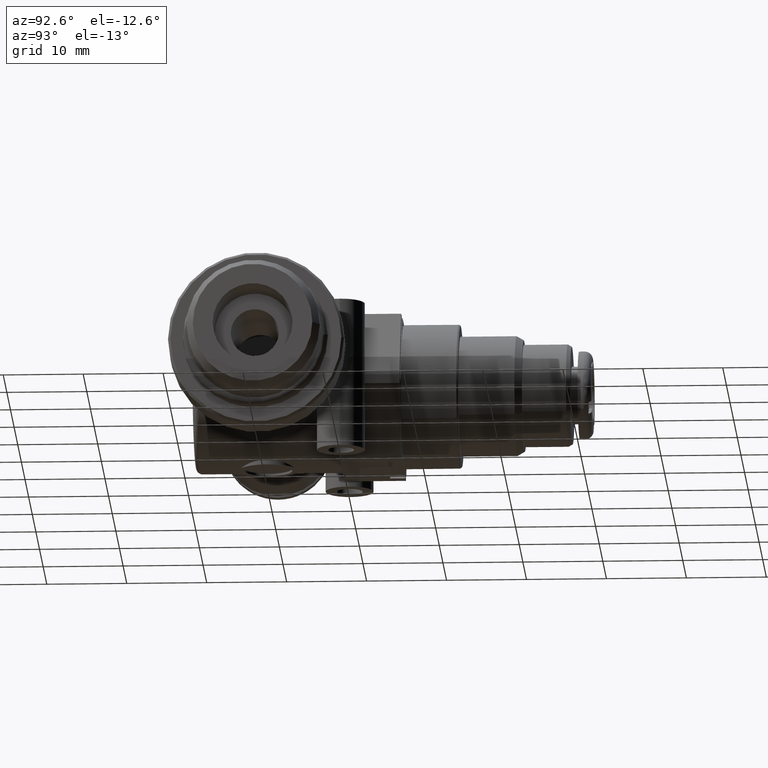
[diagram: clean part render]
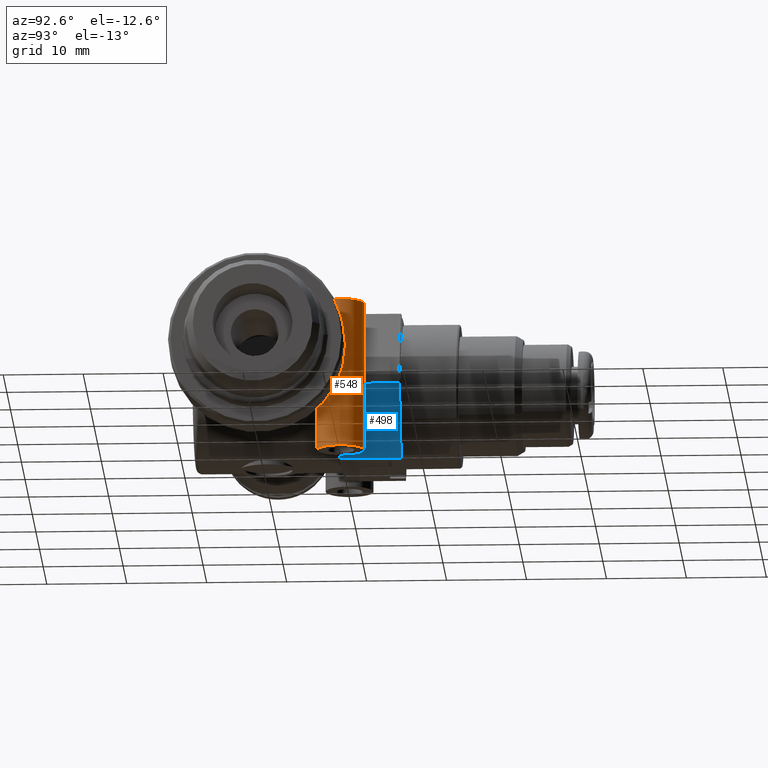
[diagram: same view with the hole feature highlighted: cylindrical wall and planar end face, labeled with their STEP entity ids]
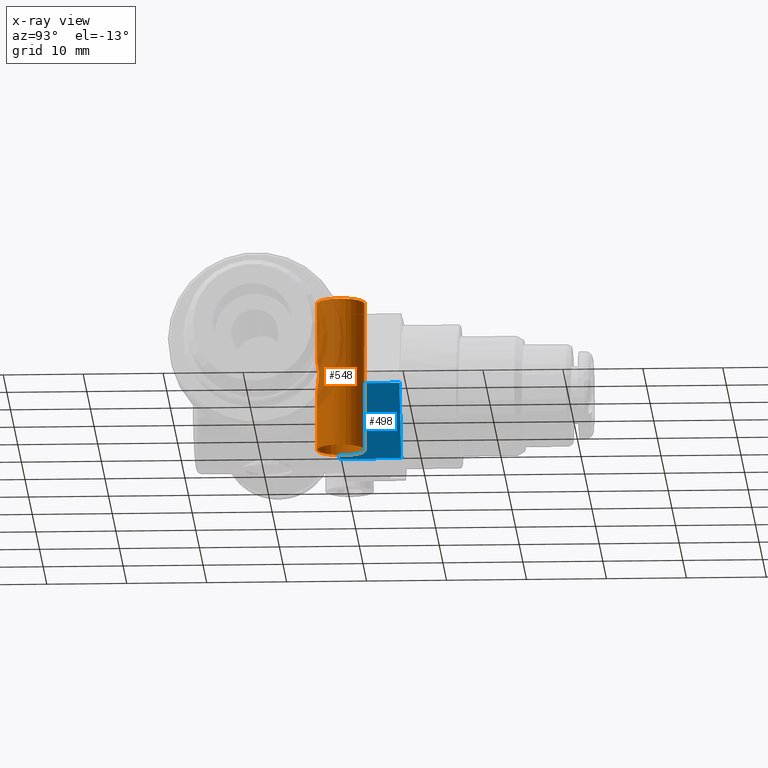
[diagram: x-ray of the same camera — body ghosted, the hole faces saturated]
A machine part, auxiliary view. The highlighted faces form one hole feature of diameter 6 mm: the cylindrical wall (entity #548, orange) and its adjacent planar end face (entity #498, blue) — they share a circular edge in the B-rep.
The next image is the same camera in x-ray (body ghosted, the hole faces saturated) — the bore reads through the body.
Wall:
#548 = ADVANCED_FACE( '', ( #1156, #1157, #1158, #1159 ), #1160, .T. );
#1156 = FACE_OUTER_BOUND( '', #1841, .T. );
#1157 = FACE_OUTER_BOUND( '', #1842, .T. );
#1158 = FACE_BOUND( '', #1843, .T. );
#1159 = FACE_BOUND( '', #1844, .T. );
#1160 = CYLINDRICAL_SURFACE( '', #1845, 3.00000000000000 );
#1841 = EDGE_LOOP( '', ( #3035 ) );
#1842 = EDGE_LOOP( '', ( #3036 ) );
#1843 = EDGE_LOOP( '', ( #3037 ) );
#1844 = EDGE_LOOP( '', ( #3038, #3039, #3040, #3041, #3042, #3043 ) );
#1845 = AXIS2_PLACEMENT_3D( '', #3044, #3045, #3046 );
#3035 = ORIENTED_EDGE( '', *, *, #4087, .F. );
#3036 = ORIENTED_EDGE( '', *, *, #3893, .T. );
#3037 = ORIENTED_EDGE( '', *, *, #3693, .T. );
#3038 = ORIENTED_EDGE( '', *, *, #3833, .T. );
#3039 = ORIENTED_EDGE( '', *, *, #4088, .T. );
#3040 = ORIENTED_EDGE( '', *, *, #4060, .T. );
#3041 = ORIENTED_EDGE( '', *, *, #4020, .T. );
#3042 = ORIENTED_EDGE( '', *, *, #4089, .T. );
#3043 = ORIENTED_EDGE( '', *, *, #3939, .T. );
#3044 = CARTESIAN_POINT( '', ( 12.0000000000000, 9.60000000000000, 9.35000000000000 ) );
#3045 = DIRECTION( '', ( 0.000000000000000, -0.000000000000000, 1.00000000000000 ) );
#3046 = DIRECTION( '', ( -1.00000000000000, 0.000000000000000, 0.000000000000000 ) );
#3693 = EDGE_CURVE( '', #4309, #4309, #4310, .T. );
#3833 = EDGE_CURVE( '', #4546, #4547, #4548, .T. );
#3893 = EDGE_CURVE( '', #4637, #4637, #4638, .T. );
#3939 = EDGE_CURVE( '', #4707, #4546, #4708, .F. );
#4020 = EDGE_CURVE( '', #4829, #4830, #4831, .F. );
#4060 = EDGE_CURVE( '', #4887, #4829, #4888, .T. );
#4087 = EDGE_CURVE( '', #4920, #4920, #4921, .T. );
#4088 = EDGE_CURVE( '', #4547, #4887, #4922, .T. );
#4089 = EDGE_CURVE( '', #4830, #4707, #4923, .T. );
#4309 = VERTEX_POINT( '', #5200 );
#4310 = B_SPLINE_CURVE_WITH_KNOTS( '', 3, ( #5201, #5202, #5203, #5204, #5205, #5206, #5207, #5208, #5209, #5210, #5211, #5212, #5213, #5214, #5215, #5216, #5217, #5218, #5219, #5220, #5221, #5222, #5223, #5224, #5225, #5226, #5227, #5228, #5229, #5230, #5231, #5232, #5233, #5234, #5235, #5236, #5237, #5238, #5239, #5240, #5241, #5242, #5243, #5244 ), .UNSPECIFIED., .T., .F., ( 2, 2, 2, 2, 2, 2, 2, 2, 2, 2, 2, 2, 2, 2, 2, 2, 2, 2, 2, 2, 2, 2, 2, 2 ), ( -0.000663314908686696, 0.000000000000000, 0.000663314908686694, 0.00132662981737339, 0.00198994472606008, 0.00232160218040343, 0.00265325963474678, 0.00298491708909013, 0.00331657454343348, 0.00397988945212018, 0.00464320436080687, 0.00530651926949357, 0.00596983417818027, 0.00663314908686696, 0.00729646399555366, 0.00762812144989701, 0.00795977890424036, 0.00829143635858370, 0.00862309381292705, 0.00895475126727040, 0.00928640872161375, 0.00994972363030044, 0.0106130385389871, 0.0112763534476738 ), .UNSPECIFIED. );
#4546 = VERTEX_POINT( '', #5719 );
#4547 = VERTEX_POINT( '', #5720 );
#4548 = LINE( '', #5721, #5722 );
#4637 = VERTEX_POINT( '', #5853 );
#4638 = CIRCLE( '', #5854, 3.00000000000000 );
#4707 = VERTEX_POINT( '', #5971 );
#4708 = ELLIPSE( '', #5972, 6.00000000000000, 3.00000000000000 );
#4829 = VERTEX_POINT( '', #6404 );
#4830 = VERTEX_POINT( '', #6405 );
#4831 = ELLIPSE( '', #6406, 6.00000000000000, 3.00000000000000 );
#4887 = VERTEX_POINT( '', #6481 );
#4888 = LINE( '', #6482, #6483 );
#4920 = VERTEX_POINT( '', #6519 );
#4921 = CIRCLE( '', #6520, 3.00000000000000 );
#4922 = B_SPLINE_CURVE_WITH_KNOTS( '', 3, ( #6521, #6522, #6523, #6524, #6525, #6526, #6527, #6528, #6529, #6530, #6531, #6532, #6533, #6534, #6535, #6536, #6537, #6538, #6539, #6540, #6541, #6542, #6543, #6544 ), .UNSPECIFIED., .F., .F., ( 4, 2, 2, 2, 2, 2, 2, 2, 2, 2, 2, 4 ), ( 0.000411369188282286, 0.000786886969048581, 0.00116240474981488, 0.00153792253058117, 0.00191344031134747, 0.00266447587288006, 0.00341551143441264, 0.00416654699594523, 0.00491758255747782, 0.00566861811901041, 0.00604413589977670, 0.00641965368054299 ), .UNSPECIFIED. );
#4923 = B_SPLINE_CURVE_WITH_KNOTS( '', 3, ( #6545, #6546, #6547, #6548 ), .UNSPECIFIED., .F., .F., ( 4, 4 ), ( 6.50521303491303E-019, 0.00141144808240627 ), .UNSPECIFIED. );
#5200 = CARTESIAN_POINT( '', ( 10.6923303169378, 6.90000000000000, 0.000000000000000 ) );
#5201 = CARTESIAN_POINT( '', ( 10.6923303169378, 6.90000000000000, -0.223372458043953 ) );
#5202 = CARTESIAN_POINT( '', ( 10.6923303169378, 6.90000000000000, 0.223372458043953 ) );
#5203 = CARTESIAN_POINT( '', ( 10.7139512423636, 6.88917016355307, 0.443274782966415 ) );
#5204 = CARTESIAN_POINT( '', ( 10.8053640652712, 6.84766194070503, 0.875604945979324 ) );
#5205 = CARTESIAN_POINT( '', ( 10.8753629535739, 6.81670981671288, 1.08691406947181 ) );
#5206 = CARTESIAN_POINT( '', ( 11.0770753660436, 6.74347713984063, 1.47459519330981 ) );
#5207 = CARTESIAN_POINT( '', ( 11.2105667029262, 6.70023306052220, 1.65431009805005 ) );
#5208 = CARTESIAN_POINT( '', ( 11.4725978894323, 6.64537475773597, 1.85848340608793 ) );
#5209 = CARTESIAN_POINT( '', ( 11.5676859332318, 6.62943124992445, 1.91371398316989 ) );
#5210 = CARTESIAN_POINT( '', ( 11.7778401497762, 6.60637023795532, 1.99186650805541 ) );
#5211 = CARTESIAN_POINT( '', ( 11.8864643491262, 6.60004875053598, 2.01230129905222 ) );
#5212 = CARTESIAN_POINT( '', ( 12.1109445560994, 6.59995180894506, 2.01261922559176 ) );
#5213 = CARTESIAN_POINT( '', ( 12.2213779373212, 6.60631051746791, 1.99206300190535 ) );
#5214 = CARTESIAN_POINT( '', ( 12.4316389207332, 6.62933126197752, 1.91405869182083 ) );
#5215 = CARTESIAN_POINT( '', ( 12.5278741754911, 6.64546274819553, 1.85816701958692 ) );
#5216 = CARTESIAN_POINT( '', ( 12.7895400644762, 6.70027715869431, 1.65412370698782 ) );
#5217 = CARTESIAN_POINT( '', ( 12.9228629822962, 6.74345822909121, 1.47466947075658 ) );
#5218 = CARTESIAN_POINT( '', ( 13.1245271766240, 6.81666645870936, 1.08716941006738 ) );
#5219 = CARTESIAN_POINT( '', ( 13.1947958122588, 6.84773407728518, 0.874889253120810 ) );
#5220 = CARTESIAN_POINT( '', ( 13.2859345838451, 6.88911878010131, 0.443774303102876 ) );
#5221 = CARTESIAN_POINT( '', ( 13.3075610836491, 6.89994740292317, 0.224449333281119 ) );
#5222 = CARTESIAN_POINT( '', ( 13.3077774944374, 6.90005221541269, -0.221203731647836 ) );
#5223 = CARTESIAN_POINT( '', ( 13.2861296884393, 6.88921818097250, -0.441895178940651 ) );
#5224 = CARTESIAN_POINT( '', ( 13.1956764300181, 6.84812327300912, -0.871668590625960 ) );
#5225 = CARTESIAN_POINT( '', ( 13.1255604070059, 6.81708742352270, -1.08459848474594 ) );
#5226 = CARTESIAN_POINT( '', ( 12.9240862248988, 6.74385692111073, -1.47289804149897 ) );
#5227 = CARTESIAN_POINT( '', ( 12.7907975025568, 6.70065738615423, -1.65258797155132 ) );
#5228 = CARTESIAN_POINT( '', ( 12.5300651710270, 6.64586425750404, -1.85673163742504 ) );
#5229 = CARTESIAN_POINT( '', ( 12.4338046558688, 6.62967983387610, -1.91285203674129 ) );
#5230 = CARTESIAN_POINT( '', ( 12.2254230785342, 6.60664522577093, -1.99095365967340 ) );
#5231 = CARTESIAN_POINT( '', ( 12.1147350630086, 6.60011989315509, -2.01206798101947 ) );
#5232 = CARTESIAN_POINT( '', ( 11.8916227491032, 6.59988347532709, -2.01284333130271 ) );
#5233 = CARTESIAN_POINT( '', ( 11.7800355546668, 6.60621940774216, -1.99235747638848 ) );
#5234 = CARTESIAN_POINT( '', ( 11.5704983727618, 6.62903467809028, -1.91507765211409 ) );
#5235 = CARTESIAN_POINT( '', ( 11.4739866875253, 6.64511693112195, -1.85940942255562 ) );
#5236 = CARTESIAN_POINT( '', ( 11.2986221775463, 6.68176541282014, -1.72307672406444 ) );
#5237 = CARTESIAN_POINT( '', ( 11.2223082529420, 6.70169241225708, -1.64471454590283 ) );
#5238 = CARTESIAN_POINT( '', ( 11.0867370664864, 6.74151401247438, -1.47300914648214 ) );
#5239 = CARTESIAN_POINT( '', ( 11.0273684885588, 6.76153552003812, -1.37890772815553 ) );
#5240 = CARTESIAN_POINT( '', ( 10.8756926157169, 6.81656623037998, -1.08785167778526 ) );
#5241 = CARTESIAN_POINT( '', ( 10.8056785633163, 6.84752264253858, -0.876784473247790 ) );
#5242 = CARTESIAN_POINT( '', ( 10.7139825959845, 6.88915243253530, -0.443729775764339 ) );
#5243 = CARTESIAN_POINT( '', ( 10.6923303169378, 6.90000000000000, -0.223372458043953 ) );
#5244 = CARTESIAN_POINT( '', ( 10.6923303169378, 6.90000000000000, 0.223372458043953 ) );
#5719 = CARTESIAN_POINT( '', ( 9.02678625053630, 9.20000000000000, 4.86514758500697 ) );
#5720 = CARTESIAN_POINT( '', ( 9.02678625053630, 9.20000000000000, 2.62242826157911 ) );
#5721 = CARTESIAN_POINT( '', ( 9.02678625053630, 9.20000000000000, 9.35000000000000 ) );
#5722 = VECTOR( '', #7060, 1000.00000000000 );
#5853 = CARTESIAN_POINT( '', ( 15.0000000000000, 9.60000000000000, -9.35000000000000 ) );
#5854 = AXIS2_PLACEMENT_3D( '', #7133, #7134, #7135 );
#5971 = CARTESIAN_POINT( '', ( 11.4282305532251, 12.5450092868673, 0.705724041203134 ) );
#5972 = AXIS2_PLACEMENT_3D( '', #7188, #7189, #7190 );
#6404 = CARTESIAN_POINT( '', ( 9.02678625053630, 9.20000000000000, -4.86514758500697 ) );
#6405 = CARTESIAN_POINT( '', ( 11.4282305532251, 12.5450092868673, -0.705724041203131 ) );
#6406 = AXIS2_PLACEMENT_3D( '', #7284, #7285, #7286 );
#6481 = CARTESIAN_POINT( '', ( 9.02678625053630, 9.20000000000000, -2.62242826157911 ) );
#6482 = CARTESIAN_POINT( '', ( 9.02678625053630, 9.20000000000000, 9.35000000000000 ) );
#6483 = VECTOR( '', #7330, 1000.00000000000 );
#6519 = CARTESIAN_POINT( '', ( 15.0000000000000, 9.60000000000000, 9.35000000000000 ) );
#6520 = AXIS2_PLACEMENT_3D( '', #7362, #7363, #7364 );
#6521 = CARTESIAN_POINT( '', ( 9.02678625053630, 9.20000000000000, 2.62242826157911 ) );
#6522 = CARTESIAN_POINT( '', ( 9.04212068651192, 9.08601861029255, 2.56964486313408 ) );
#6523 = CARTESIAN_POINT( '', ( 9.06266099999865, 8.98281102078345, 2.49713789076783 ) );
#6524 = CARTESIAN_POINT( '', ( 9.10719422978917, 8.79965169280477, 2.32949249994492 ) );
#6525 = CARTESIAN_POINT( '', ( 9.13092175128524, 8.72024480121961, 2.23542796235512 ) );
#6526 = CARTESIAN_POINT( '', ( 9.17825790095592, 8.57855458613218, 2.03235137378192 ) );
#6527 = CARTESIAN_POINT( '', ( 9.20168886943548, 8.51705381947301, 1.92398430343214 ) );
#6528 = CARTESIAN_POINT( '', ( 9.24532004790857, 8.41043874688824, 1.70201376653832 ) );
#6529 = CARTESIAN_POINT( '', ( 9.26573599038205, 8.36480234827592, 1.58753178806570 ) );
#6530 = CARTESIAN_POINT( '', ( 9.32149127915953, 8.24602707381262, 1.23542819252035 ) );
#6531 = CARTESIAN_POINT( '', ( 9.35099182384231, 8.19131378956690, 0.989762189760738 ) );
#6532 = CARTESIAN_POINT( '', ( 9.38999584867337, 8.12029750055208, 0.498653430493098 ) );
#6533 = CARTESIAN_POINT( '', ( 9.39999937757450, 8.10333812656680, 0.250544410001699 ) );
#6534 = CARTESIAN_POINT( '', ( 9.40000062236748, 8.10333596411483, -0.250497703133467 ) );
#6535 = CARTESIAN_POINT( '', ( 9.38981580708663, 8.12061352167103, -0.501761491298760 ) );
#6536 = CARTESIAN_POINT( '', ( 9.35076577767721, 8.19173727292411, -0.991758466656487 ) );
#6537 = CARTESIAN_POINT( '', ( 9.32188718125675, 8.24524601923618, -1.23252764827925 ) );
#6538 = CARTESIAN_POINT( '', ( 9.24752355055476, 8.40353854489096, -1.70294251394073 ) );
#6539 = CARTESIAN_POINT( '', ( 9.20188646120618, 8.50772898936413, -1.93106819338534 ) );
#6540 = CARTESIAN_POINT( '', ( 9.13064344687647, 8.72112753757185, -2.23657884929724 ) );
#6541 = CARTESIAN_POINT( '', ( 9.10696907427233, 8.80055988691752, -2.33034453369805 ) );
#6542 = CARTESIAN_POINT( '', ( 9.06282217568560, 8.98216599318444, -2.49652670271925 ) );
#6543 = CARTESIAN_POINT( '', ( 9.04206341653163, 9.08644430002465, -2.56984199488340 ) );
#6544 = CARTESIAN_POINT( '', ( 9.02678625053630, 9.20000000000000, -2.62242826157911 ) );
#6545 = CARTESIAN_POINT( '', ( 11.4282305532251, 12.5450092868673, -0.705724041203132 ) );
#6546 = CARTESIAN_POINT( '', ( 11.4572841277636, 12.5506499978541, -0.235241347067710 ) );
#6547 = CARTESIAN_POINT( '', ( 11.4572841277636, 12.5506499978541, 0.235241347067713 ) );
#6548 = CARTESIAN_POINT( '', ( 11.4282305532251, 12.5450092868673, 0.705724041203135 ) );
#7060 = DIRECTION( '', ( -0.000000000000000, -0.000000000000000, -1.00000000000000 ) );
#7133 = CARTESIAN_POINT( '', ( 12.0000000000000, 9.60000000000000, -9.35000000000000 ) );
#7134 = DIRECTION( '', ( 0.000000000000000, 0.000000000000000, 1.00000000000000 ) );
#7135 = DIRECTION( '', ( 1.00000000000000, 0.000000000000000, 0.000000000000000 ) );
#7188 = CARTESIAN_POINT( '', ( 12.0000000000000, 9.60000000000000, -0.284609690826526 ) );
#7189 = DIRECTION( '', ( -0.866025403784439, 0.000000000000000, -0.500000000000000 ) );
#7190 = DIRECTION( '', ( 0.500000000000000, -0.000000000000000, -0.866025403784438 ) );
#7284 = CARTESIAN_POINT( '', ( 12.0000000000000, 9.60000000000000, 0.284609690826528 ) );
#7285 = DIRECTION( '', ( -0.866025403784439, 0.000000000000000, 0.500000000000000 ) );
#7286 = DIRECTION( '', ( -0.500000000000000, 0.000000000000000, -0.866025403784439 ) );
#7330 = DIRECTION( '', ( -0.000000000000000, -0.000000000000000, -1.00000000000000 ) );
#7362 = CARTESIAN_POINT( '', ( 12.0000000000000, 9.60000000000000, 9.35000000000000 ) );
#7363 = DIRECTION( '', ( 0.000000000000000, 0.000000000000000, 1.00000000000000 ) );
#7364 = DIRECTION( '', ( 1.00000000000000, 0.000000000000000, 0.000000000000000 ) );
End face:
#498 = ADVANCED_FACE( '', ( #1067 ), #1068, .F. );
#1067 = FACE_OUTER_BOUND( '', #1752, .T. );
#1068 = PLANE( '', #1753 );
#1752 = EDGE_LOOP( '', ( #2838, #2839, #2840, #2841, #2842 ) );
#1753 = AXIS2_PLACEMENT_3D( '', #2843, #2844, #2845 );
#2838 = ORIENTED_EDGE( '', *, *, #4020, .F. );
#2839 = ORIENTED_EDGE( '', *, *, #4021, .T. );
#2840 = ORIENTED_EDGE( '', *, *, #4007, .F. );
#2841 = ORIENTED_EDGE( '', *, *, #3721, .F. );
#2842 = ORIENTED_EDGE( '', *, *, #4022, .T. );
#2843 = CARTESIAN_POINT( '', ( 11.4282305532251, 16.9000000000000, -0.705724041203130 ) );
#2844 = DIRECTION( '', ( -0.866025403784439, 0.000000000000000, 0.500000000000000 ) );
#2845 = DIRECTION( '', ( 0.500000000000000, 0.000000000000000, 0.866025403784439 ) );
#3721 = EDGE_CURVE( '', #4357, #4359, #4360, .T. );
#4007 = EDGE_CURVE( '', #4359, #4809, #4810, .T. );
#4020 = EDGE_CURVE( '', #4829, #4830, #4831, .F. );
#4021 = EDGE_CURVE( '', #4829, #4809, #4832, .T. );
#4022 = EDGE_CURVE( '', #4357, #4830, #4833, .T. );
#4357 = VERTEX_POINT( '', #5393 );
#4359 = VERTEX_POINT( '', #5395 );
#4360 = LINE( '', #5396, #5397 );
#4809 = VERTEX_POINT( '', #6336 );
#4810 = LINE( '', #6337, #6338 );
#4829 = VERTEX_POINT( '', #6404 );
#4830 = VERTEX_POINT( '', #6405 );
#4831 = ELLIPSE( '', #6406, 6.00000000000000, 3.00000000000000 );
#4832 = LINE( '', #6407, #6408 );
#4833 = LINE( '', #6409, #6410 );
#5393 = CARTESIAN_POINT( '', ( 11.4282305532251, 16.9000000000000, -0.705724041203131 ) );
#5395 = CARTESIAN_POINT( '', ( 6.49519052838329, 16.9000000000000, -9.25000000000000 ) );
#5396 = CARTESIAN_POINT( '', ( 11.4282305532251, 16.9000000000000, -0.705724041203130 ) );
#5397 = VECTOR( '', #6927, 1000.00000000000 );
#6336 = CARTESIAN_POINT( '', ( 6.49519052838329, 9.20000000000000, -9.25000000000000 ) );
#6337 = CARTESIAN_POINT( '', ( 6.49519052838329, 16.9000000000000, -9.25000000000000 ) );
#6338 = VECTOR( '', #7269, 1000.00000000000 );
#6404 = CARTESIAN_POINT( '', ( 9.02678625053630, 9.20000000000000, -4.86514758500697 ) );
#6405 = CARTESIAN_POINT( '', ( 11.4282305532251, 12.5450092868673, -0.705724041203131 ) );
#6406 = AXIS2_PLACEMENT_3D( '', #7284, #7285, #7286 );
#6407 = CARTESIAN_POINT( '', ( 11.4282305532251, 9.20000000000000, -0.705724041203130 ) );
#6408 = VECTOR( '', #7287, 1000.00000000000 );
#6409 = CARTESIAN_POINT( '', ( 11.4282305532251, 16.9000000000000, -0.705724041203131 ) );
#6410 = VECTOR( '', #7288, 1000.00000000000 );
#6927 = DIRECTION( '', ( -0.500000000000000, 0.000000000000000, -0.866025403784439 ) );
#7269 = DIRECTION( '', ( -0.000000000000000, -1.00000000000000, -0.000000000000000 ) );
#7284 = CARTESIAN_POINT( '', ( 12.0000000000000, 9.60000000000000, 0.284609690826528 ) );
#7285 = DIRECTION( '', ( -0.866025403784439, 0.000000000000000, 0.500000000000000 ) );
#7286 = DIRECTION( '', ( -0.500000000000000, 0.000000000000000, -0.866025403784439 ) );
#7287 = DIRECTION( '', ( -0.500000000000000, 0.000000000000000, -0.866025403784439 ) );
#7288 = DIRECTION( '', ( -0.000000000000000, -1.00000000000000, -0.000000000000000 ) );